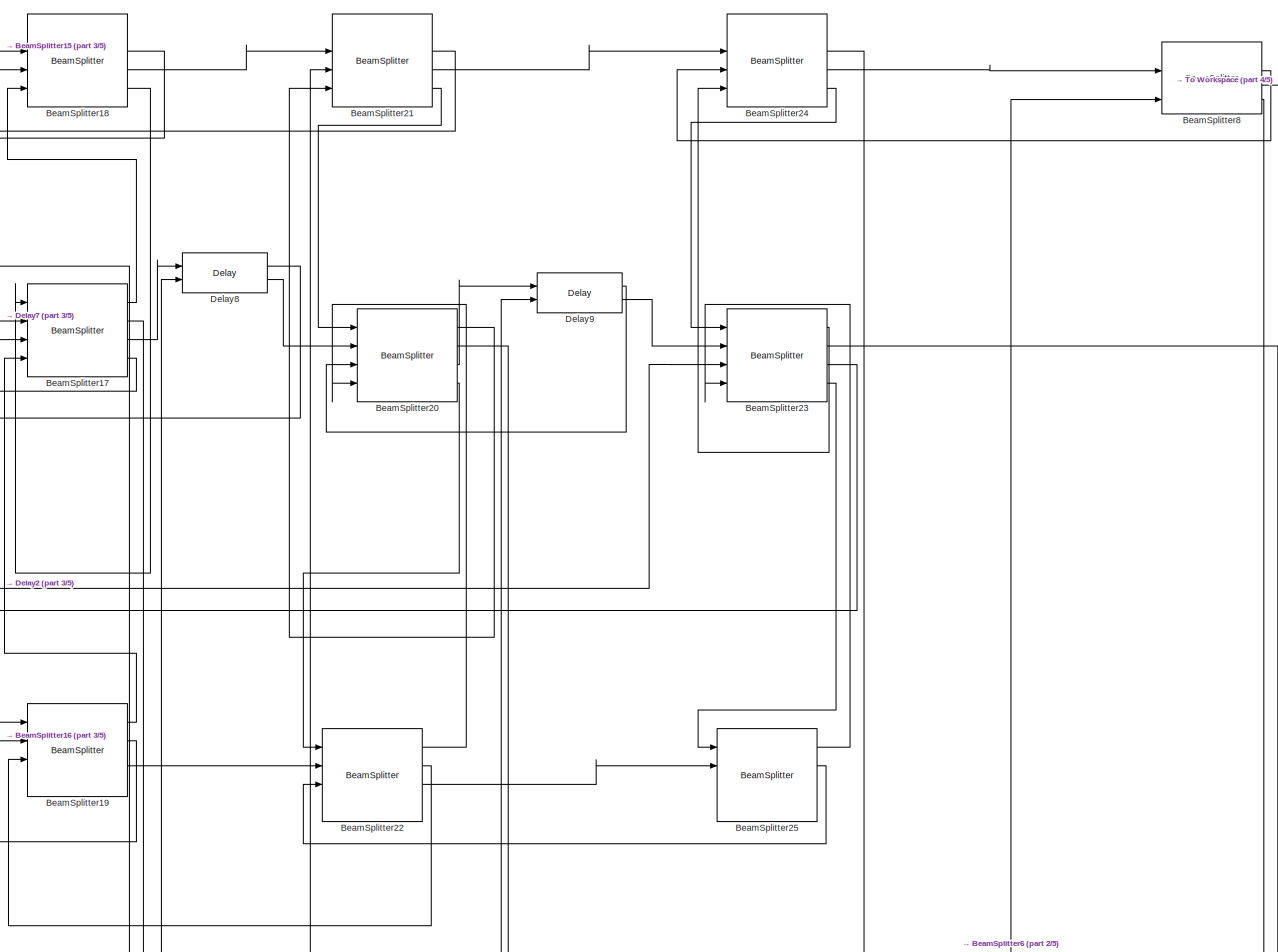
[diagram: root canvas - part 1/5, right side, full height]
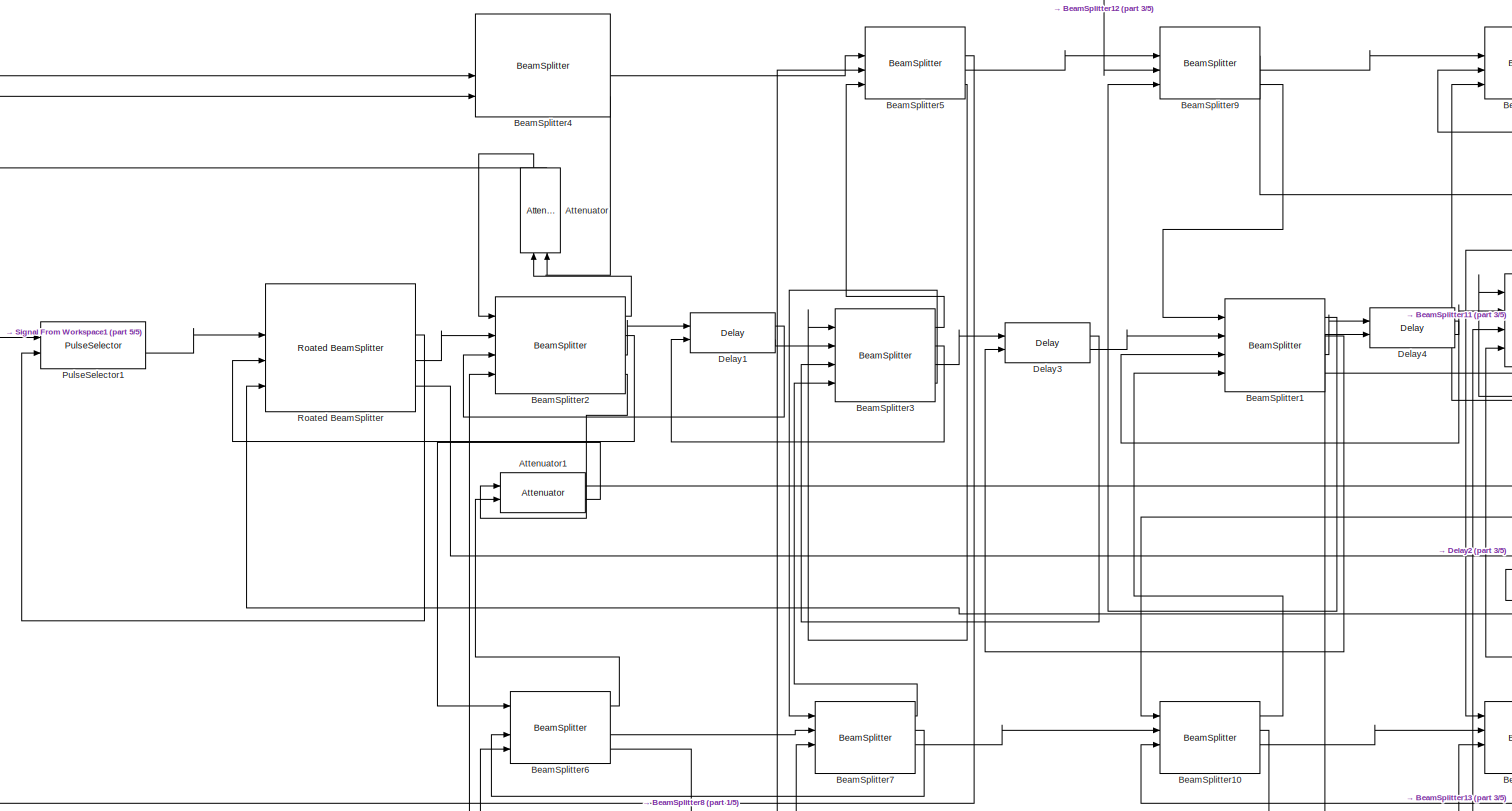
[diagram: root canvas - part 2/5, left side, full height]
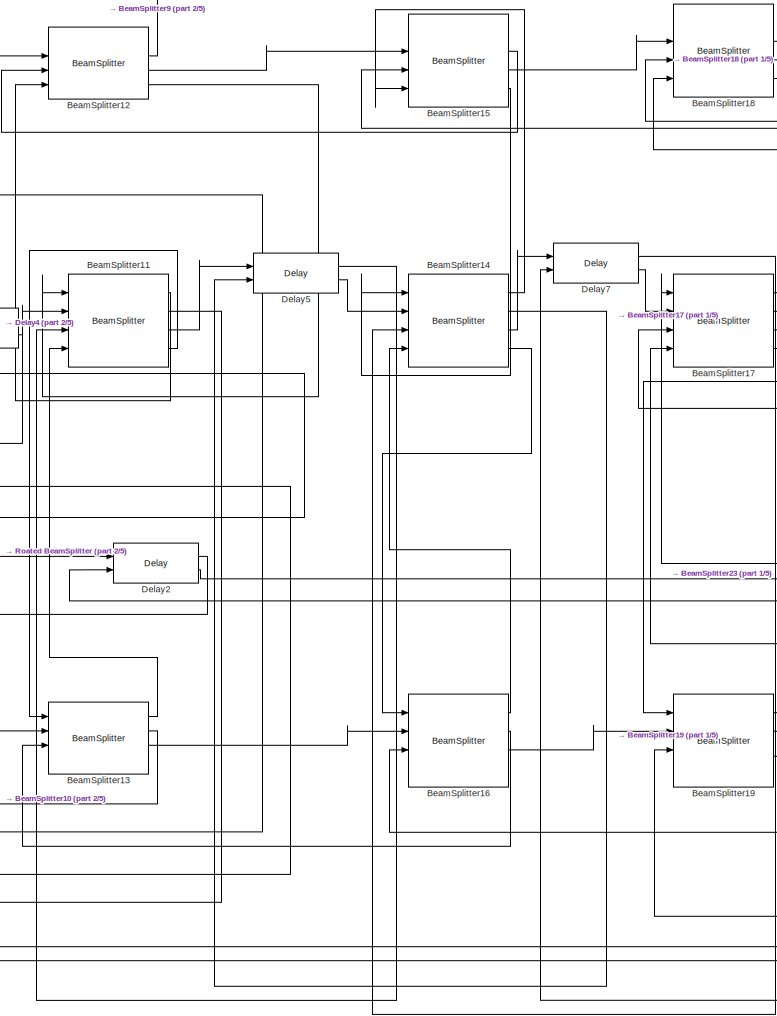
[diagram: root canvas - part 3/5, center side, full height]
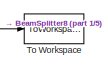
[diagram: root canvas - part 4/5, top right region]
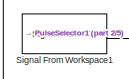
[diagram: root canvas - part 5/5, middle left region]
MODEL slx_5f44fb5147fe
KIND model
BLOCK [Reference] Attenuator  REF=BlockLib/Attenuator
  AttnFactor = 0.5
  Ports = [2, 2]
  SourceBlock = BlockLib/Attenuator
BLOCK [Reference] Attenuator1  REF=BlockLib/Attenuator
  AttnFactor = 0.5
  Ports = [2, 2]
  SourceBlock = BlockLib/Attenuator
BLOCK [Reference] BeamSplitter1  REF=BlockLib/BeamSplitter
  BackReflectance = 0.001
  Ghost = 0.01
  Ports = [4, 4]
  Reflectance = 0.50
  SourceBlock = BlockLib/BeamSplitter
  Transmittance = 0.50
BLOCK [Reference] BeamSplitter10  REF=BlockLib/BeamSplitter
  BackReflectance = 0.001
  Ghost = 0.01
  Ports = [4, 4]
  Reflectance = 0.50
  SourceBlock = BlockLib/BeamSplitter
  Transmittance = 0.50
BLOCK [Reference] BeamSplitter11  REF=BlockLib/BeamSplitter
  BackReflectance = 0.001
  Ghost = 0.01
  Ports = [4, 4]
  Reflectance = 0.50
  SourceBlock = BlockLib/BeamSplitter
  Transmittance = 0.50
BLOCK [Reference] BeamSplitter12  REF=BlockLib/BeamSplitter
  BackReflectance = 0.001
  Ghost = 0.01
  Ports = [4, 4]
  Reflectance = 0.50
  SourceBlock = BlockLib/BeamSplitter
  Transmittance = 0.50
BLOCK [Reference] BeamSplitter13  REF=BlockLib/BeamSplitter
  BackReflectance = 0.001
  Ghost = 0.01
  Ports = [4, 4]
  Reflectance = 0.50
  SourceBlock = BlockLib/BeamSplitter
  Transmittance = 0.50
BLOCK [Reference] BeamSplitter14  REF=BlockLib/BeamSplitter
  BackReflectance = 0.001
  Ghost = 0.01
  Ports = [4, 4]
  Reflectance = 0.50
  SourceBlock = BlockLib/BeamSplitter
  Transmittance = 0.50
BLOCK [Reference] BeamSplitter15  REF=BlockLib/BeamSplitter
  BackReflectance = 0.001
  Ghost = 0.01
  Ports = [4, 4]
  Reflectance = 0.50
  SourceBlock = BlockLib/BeamSplitter
  Transmittance = 0.50
BLOCK [Reference] BeamSplitter16  REF=BlockLib/BeamSplitter
  BackReflectance = 0.001
  Ghost = 0.01
  Ports = [4, 4]
  Reflectance = 0.50
  SourceBlock = BlockLib/BeamSplitter
  Transmittance = 0.50
BLOCK [Reference] BeamSplitter17  REF=BlockLib/BeamSplitter
  BackReflectance = 0.001
  Ghost = 0.01
  Ports = [4, 4]
  Reflectance = 0.50
  SourceBlock = BlockLib/BeamSplitter
  Transmittance = 0.50
BLOCK [Reference] BeamSplitter18  REF=BlockLib/BeamSplitter
  BackReflectance = 0.001
  Ghost = 0.01
  Ports = [4, 4]
  Reflectance = 0.50
  SourceBlock = BlockLib/BeamSplitter
  Transmittance = 0.50
BLOCK [Reference] BeamSplitter19  REF=BlockLib/BeamSplitter
  BackReflectance = 0.001
  Ghost = 0.01
  Ports = [4, 4]
  Reflectance = 0.50
  SourceBlock = BlockLib/BeamSplitter
  Transmittance = 0.50
BLOCK [Reference] BeamSplitter2  REF=BlockLib/BeamSplitter
  BackReflectance = 0.001
  Ghost = 0.01
  Ports = [4, 4]
  Reflectance = 0.50
  SourceBlock = BlockLib/BeamSplitter
  Transmittance = 0.50
BLOCK [Reference] BeamSplitter20  REF=BlockLib/BeamSplitter
  BackReflectance = 0.001
  Ghost = 0.01
  Ports = [4, 4]
  Reflectance = 0.50
  SourceBlock = BlockLib/BeamSplitter
  Transmittance = 0.50
BLOCK [Reference] BeamSplitter21  REF=BlockLib/BeamSplitter
  BackReflectance = 0.001
  Ghost = 0.01
  Ports = [4, 4]
  Reflectance = 0.50
  SourceBlock = BlockLib/BeamSplitter
  Transmittance = 0.50
BLOCK [Reference] BeamSplitter22  REF=BlockLib/BeamSplitter
  BackReflectance = 0.001
  Ghost = 0.01
  Ports = [4, 4]
  Reflectance = 0.50
  SourceBlock = BlockLib/BeamSplitter
  Transmittance = 0.50
BLOCK [Reference] BeamSplitter23  REF=BlockLib/BeamSplitter
  BackReflectance = 0.001
  Ghost = 0.01
  Ports = [4, 4]
  Reflectance = 0.50
  SourceBlock = BlockLib/BeamSplitter
  Transmittance = 0.50
BLOCK [Reference] BeamSplitter24  REF=BlockLib/BeamSplitter
  BackReflectance = 0.001
  Ghost = 0.01
  Ports = [4, 4]
  Reflectance = 0.50
  SourceBlock = BlockLib/BeamSplitter
  Transmittance = 0.50
BLOCK [Reference] BeamSplitter25  REF=BlockLib/BeamSplitter
  BackReflectance = 0.001
  Ghost = 0.01
  Ports = [4, 4]
  Reflectance = 0.50
  SourceBlock = BlockLib/BeamSplitter
  Transmittance = 0.50
BLOCK [Reference] BeamSplitter3  REF=BlockLib/BeamSplitter
  BackReflectance = 0.001
  Ghost = 0.01
  Ports = [4, 4]
  Reflectance = 0.50
  SourceBlock = BlockLib/BeamSplitter
  Transmittance = 0.50
BLOCK [Reference] BeamSplitter4  REF=BlockLib/BeamSplitter
  BackReflectance = 0.001
  Ghost = 0.01
  Ports = [4, 4]
  Reflectance = 0.50
  SourceBlock = BlockLib/BeamSplitter
  Transmittance = 0.50
BLOCK [Reference] BeamSplitter5  REF=BlockLib/BeamSplitter
  BackReflectance = 0.001
  Ghost = 0.01
  Ports = [4, 4]
  Reflectance = 0.50
  SourceBlock = BlockLib/BeamSplitter
  Transmittance = 0.50
BLOCK [Reference] BeamSplitter6  REF=BlockLib/BeamSplitter
  BackReflectance = 0.001
  Ghost = 0.01
  Ports = [4, 4]
  Reflectance = 0.50
  SourceBlock = BlockLib/BeamSplitter
  Transmittance = 0.50
BLOCK [Reference] BeamSplitter7  REF=BlockLib/BeamSplitter
  BackReflectance = 0.001
  Ghost = 0.01
  Ports = [4, 4]
  Reflectance = 0.50
  SourceBlock = BlockLib/BeamSplitter
  Transmittance = 0.50
BLOCK [Reference] BeamSplitter8  REF=BlockLib/BeamSplitter
  BackReflectance = 0.001
  Ghost = 0.01
  Ports = [4, 4]
  Reflectance = 0.50
  SourceBlock = BlockLib/BeamSplitter
  Transmittance = 0.50
BLOCK [Reference] BeamSplitter9  REF=BlockLib/BeamSplitter
  BackReflectance = 0.001
  Ghost = 0.01
  Ports = [4, 4]
  Reflectance = 0.50
  SourceBlock = BlockLib/BeamSplitter
  Transmittance = 0.50
BLOCK [Reference] Delay1  REF=BlockLib/Delay
  DelayAmt = delTimes(1)
  Ports = [2, 2]
  SourceBlock = BlockLib/Delay
BLOCK [Reference] Delay2  REF=BlockLib/Delay
  DelayAmt = delTimes(8)
  Ports = [2, 2]
  SourceBlock = BlockLib/Delay
BLOCK [Reference] Delay3  REF=BlockLib/Delay
  DelayAmt = delTimes(2)
  Ports = [2, 2]
  SourceBlock = BlockLib/Delay
BLOCK [Reference] Delay4  REF=BlockLib/Delay
  DelayAmt = delTimes(3)
  Ports = [2, 2]
  SourceBlock = BlockLib/Delay
BLOCK [Reference] Delay5  REF=BlockLib/Delay
  DelayAmt = delTimes(4)
  Ports = [2, 2]
  SourceBlock = BlockLib/Delay
BLOCK [Reference] Delay7  REF=BlockLib/Delay
  DelayAmt = delTimes(5)
  Ports = [2, 2]
  SourceBlock = BlockLib/Delay
BLOCK [Reference] Delay8  REF=BlockLib/Delay
  DelayAmt = delTimes(6)
  Ports = [2, 2]
  SourceBlock = BlockLib/Delay
BLOCK [Reference] Delay9  REF=BlockLib/Delay
  DelayAmt = delTimes(7)
  Ports = [2, 2]
  SourceBlock = BlockLib/Delay
BLOCK [Reference] PulseSelector1  REF=BlockLib/PulseSelector
  ControlPowers = CP1
  PCTimings = PCTimings1
  Ports = [2, 2]
  SourceBlock = BlockLib/PulseSelector
BLOCK [Reference] Roated BeamSplitter  REF=BlockLib/Roated BeamSplitter
  BackReflectance = 0.001
  Ghost = 0.01
  Ports = [4, 4]
  Reflectance = 0.5
  SourceBlock = BlockLib/Roated BeamSplitter
  Transmittance = 0.5
BLOCK [Reference] Signal From Workspace1  REF=dspsrcs4/Signal From
Workspace
  OutputAfterFinalValue = Setting to zero
  Ports = [0, 1]
  SourceBlock = dspsrcs4/Signal From\nWorkspace
  SourceType = Signal From Workspace
  Ts = 1
  X = inputsignal
  ignoreOrWarnInputAndFrameLengths = off
  nsamps = 1
BLOCK [ToWorkspace] To Workspace
  FixptAsFi = on
  MaxDataPoints = inf
  Ports = [1]
  SampleTime = -1
  SaveFormat = Timeseries
  VariableName = simout
LINE Attenuator1:1 -> BeamSplitter2:4
LINE Attenuator1:2 -> BeamSplitter6:1
LINE Attenuator:1 -> BeamSplitter2:1
LINE Attenuator:2 -> BeamSplitter4:4
LINE BeamSplitter10:1 -> BeamSplitter1:4
LINE BeamSplitter10:2 -> BeamSplitter7:3
LINE BeamSplitter10:3 -> BeamSplitter13:2
LINE BeamSplitter11:1 -> BeamSplitter12:4
LINE BeamSplitter11:2 -> Delay4:2
LINE BeamSplitter11:3 -> Delay5:1
LINE BeamSplitter11:4 -> BeamSplitter13:1
LINE BeamSplitter12:2 -> BeamSplitter9:3
LINE BeamSplitter12:3 -> BeamSplitter15:2
LINE BeamSplitter12:4 -> BeamSplitter11:1
LINE BeamSplitter13:1 -> BeamSplitter11:4
LINE BeamSplitter13:2 -> BeamSplitter10:3
LINE BeamSplitter13:3 -> BeamSplitter16:2
LINE BeamSplitter14:1 -> BeamSplitter15:4
LINE BeamSplitter14:2 -> Delay5:2
LINE BeamSplitter14:3 -> Delay7:1
LINE BeamSplitter14:4 -> BeamSplitter16:1
LINE BeamSplitter15:2 -> BeamSplitter12:3
LINE BeamSplitter15:3 -> BeamSplitter18:2
LINE BeamSplitter15:4 -> BeamSplitter14:1
LINE BeamSplitter16:1 -> BeamSplitter14:4
LINE BeamSplitter16:2 -> BeamSplitter13:3
LINE BeamSplitter16:3 -> BeamSplitter19:2
LINE BeamSplitter17:1 -> BeamSplitter18:4
LINE BeamSplitter17:2 -> Delay7:2
LINE BeamSplitter17:3 -> Delay8:1
LINE BeamSplitter17:4 -> BeamSplitter19:1
LINE BeamSplitter18:2 -> BeamSplitter15:3
LINE BeamSplitter18:3 -> BeamSplitter21:2
LINE BeamSplitter18:4 -> BeamSplitter17:1
LINE BeamSplitter19:1 -> BeamSplitter17:4
LINE BeamSplitter19:2 -> BeamSplitter16:3
LINE BeamSplitter19:3 -> BeamSplitter22:2
LINE BeamSplitter1:1 -> BeamSplitter9:4
LINE BeamSplitter1:2 -> Delay3:2
LINE BeamSplitter1:3 -> Delay4:1
LINE BeamSplitter1:4 -> BeamSplitter10:1
LINE BeamSplitter20:1 -> BeamSplitter21:4
LINE BeamSplitter20:2 -> Delay8:2
LINE BeamSplitter20:3 -> Delay9:1
LINE BeamSplitter20:4 -> BeamSplitter22:1
LINE BeamSplitter21:2 -> BeamSplitter18:3
LINE BeamSplitter21:3 -> BeamSplitter24:2
LINE BeamSplitter21:4 -> BeamSplitter20:1
LINE BeamSplitter22:1 -> BeamSplitter20:4
LINE BeamSplitter22:2 -> BeamSplitter19:3
LINE BeamSplitter22:3 -> BeamSplitter25:2
LINE BeamSplitter23:1 -> BeamSplitter24:4
LINE BeamSplitter23:2 -> Delay9:2
LINE BeamSplitter23:3 -> Delay2:2
LINE BeamSplitter23:4 -> BeamSplitter25:1
LINE BeamSplitter24:2 -> BeamSplitter21:3
LINE BeamSplitter24:3 -> BeamSplitter8:2
LINE BeamSplitter24:4 -> BeamSplitter23:1
LINE BeamSplitter25:1 -> BeamSplitter23:4
LINE BeamSplitter25:2 -> BeamSplitter22:3
LINE BeamSplitter2:1 -> Attenuator:1
LINE BeamSplitter2:2 -> Roated BeamSplitter:3
LINE BeamSplitter2:3 -> Delay1:1
LINE BeamSplitter2:4 -> Attenuator1:1
LINE BeamSplitter3:1 -> BeamSplitter5:4
LINE BeamSplitter3:2 -> Delay1:2
LINE BeamSplitter3:3 -> Delay3:1
LINE BeamSplitter3:4 -> BeamSplitter7:1
LINE BeamSplitter4:3 -> BeamSplitter5:2
LINE BeamSplitter4:4 -> Attenuator:2
LINE BeamSplitter5:2 -> BeamSplitter4:3
LINE BeamSplitter5:3 -> BeamSplitter9:2
LINE BeamSplitter5:4 -> BeamSplitter3:1
LINE BeamSplitter6:1 -> Attenuator1:2
LINE BeamSplitter6:3 -> BeamSplitter7:2
LINE BeamSplitter6:4 -> BeamSplitter8:4
LINE BeamSplitter7:1 -> BeamSplitter3:4
LINE BeamSplitter7:2 -> BeamSplitter6:3
LINE BeamSplitter7:3 -> BeamSplitter10:2
LINE BeamSplitter8:2 -> BeamSplitter24:3
LINE BeamSplitter8:3 -> To Workspace:1
LINE BeamSplitter8:4 -> BeamSplitter6:4
LINE BeamSplitter9:2 -> BeamSplitter5:3
LINE BeamSplitter9:3 -> BeamSplitter12:2
LINE BeamSplitter9:4 -> BeamSplitter1:1
LINE Delay1:1 -> BeamSplitter2:3
LINE Delay1:2 -> BeamSplitter3:2
LINE Delay2:1 -> Roated BeamSplitter:4
LINE Delay2:2 -> BeamSplitter23:3
LINE Delay3:1 -> BeamSplitter3:3
LINE Delay3:2 -> BeamSplitter1:2
LINE Delay4:1 -> BeamSplitter1:3
LINE Delay4:2 -> BeamSplitter11:2
LINE Delay5:1 -> BeamSplitter11:3
LINE Delay5:2 -> BeamSplitter14:2
LINE Delay7:1 -> BeamSplitter14:3
LINE Delay7:2 -> BeamSplitter17:2
LINE Delay8:1 -> BeamSplitter17:3
LINE Delay8:2 -> BeamSplitter20:2
LINE Delay9:1 -> BeamSplitter20:3
LINE Delay9:2 -> BeamSplitter23:2
LINE PulseSelector1:2 -> Roated BeamSplitter:2
LINE Roated BeamSplitter:2 -> PulseSelector1:2
LINE Roated BeamSplitter:3 -> BeamSplitter2:2
LINE Roated BeamSplitter:4 -> Delay2:1
LINE Signal From Workspace1:1 -> PulseSelector1:1
